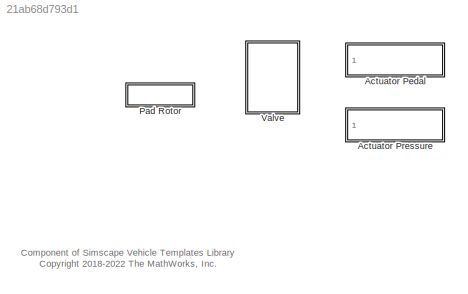
MODEL slx_21ab68d793d1
KIND library
CONFIG AbsTol = auto
CONFIG EnableMultiTasking = off
CONFIG FixedStep = auto
CONFIG MaxStep = auto
CONFIG MinStep = auto
CONFIG RelTol = 1e-3
CONFIG SampleTimeConstraint = Unconstrained
CONFIG SolverName = VariableStepAuto
CONFIG StartTime = 0.0
CONFIG StopTime = 10.0
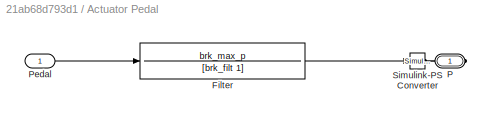
BLOCK [SubSystem] Actuator Pedal
  Ports = [1, 0, 0, 0, 0, 0, 1]
  RequestExecContextInheritance = off
BLOCK [TransferFcn] Actuator Pedal/Filter
  Denominator = [brk_filt 1]
  Numerator = brk_max_p
BLOCK [PMIOPort] Actuator Pedal/P
  Side = Right
BLOCK [Inport] Actuator Pedal/Pedal
BLOCK [Reference] Actuator Pedal/Simulink-PS Converter  REF=nesl_utility/Simulink-PS
Converter
  Ports = [1, 0, 0, 0, 0, 0, 1]
  SourceBlock = nesl_utility/Simulink-PS\nConverter
  SourceProductBaseCode = SS,PW,VE
  SourceType = Simulink-PS\nConverter
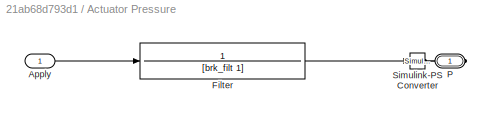
BLOCK [SubSystem] Actuator Pressure
  Ports = [1, 0, 0, 0, 0, 0, 1]
  RequestExecContextInheritance = off
BLOCK [Inport] Actuator Pressure/Apply
BLOCK [TransferFcn] Actuator Pressure/Filter
  Denominator = [brk_filt 1]
  Numerator = 1
BLOCK [PMIOPort] Actuator Pressure/P
  Side = Right
BLOCK [Reference] Actuator Pressure/Simulink-PS Converter  REF=nesl_utility/Simulink-PS
Converter
  Ports = [1, 0, 0, 0, 0, 0, 1]
  SourceBlock = nesl_utility/Simulink-PS\nConverter
  SourceProductBaseCode = SS,PW,VE
  SourceType = Simulink-PS\nConverter
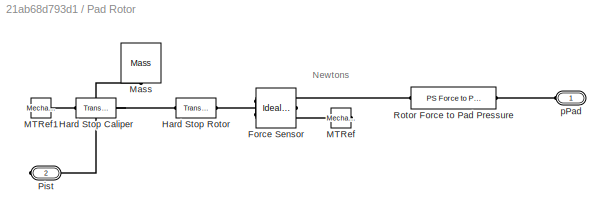
BLOCK [SubSystem] Pad Rotor
  Ports = [0, 0, 0, 0, 0, 1, 1]
  RequestExecContextInheritance = off
BLOCK [Reference] Pad Rotor/Force Sensor  REF=fl_lib/Mechanical/Mechanical Sensors/Ideal Force Sensor
  Ports = [0, 0, 0, 0, 0, 1, 2]
  SourceBlock = fl_lib/Mechanical/Mechanical Sensors/Ideal Force Sensor
  SourceProductBaseCode = PW,SS,VE
  SourceType = Ideal Force Sensor
BLOCK [Reference] Pad Rotor/Hard Stop Caliper  REF=fl_lib/Mechanical/Translational
Elements/Translational Hard
Stop
  Ports = [0, 0, 0, 0, 0, 1, 1]
  SourceBlock = fl_lib/Mechanical/Translational\nElements/Translational Hard\nStop
  SourceProductBaseCode = PW,SS,VE
  SourceType = Translational Hard\nStop
BLOCK [Reference] Pad Rotor/Hard Stop Rotor  REF=fl_lib/Mechanical/Translational
Elements/Translational Hard
Stop
  Ports = [0, 0, 0, 0, 0, 1, 1]
  SourceBlock = fl_lib/Mechanical/Translational\nElements/Translational Hard\nStop
  SourceProductBaseCode = PW,SS,VE
  SourceType = Translational Hard\nStop
BLOCK [Reference] Pad Rotor/MTRef  REF=fl_lib/Mechanical/Translational
Elements/Mechanical
Translational
Reference
  Ports = [0, 0, 0, 0, 0, 1]
  SourceBlock = fl_lib/Mechanical/Translational\nElements/Mechanical\nTranslational\nReference
  SourceProductBaseCode = PW,SS,VE
  SourceType = Mechanical\nTranslational\nReference
BLOCK [Reference] Pad Rotor/MTRef1  REF=fl_lib/Mechanical/Translational
Elements/Mechanical
Translational
Reference
  Ports = [0, 0, 0, 0, 0, 1]
  SourceBlock = fl_lib/Mechanical/Translational\nElements/Mechanical\nTranslational\nReference
  SourceProductBaseCode = PW,SS,VE
  SourceType = Mechanical\nTranslational\nReference
BLOCK [Reference] Pad Rotor/Mass  REF=fl_lib/Mechanical/Translational
Elements/Mass
  NameLocation = right
  Ports = [0, 0, 0, 0, 0, 1]
  SourceBlock = fl_lib/Mechanical/Translational\nElements/Mass
  SourceProductBaseCode = PW,SS,VE
  SourceType = Mass
BLOCK [PMIOPort] Pad Rotor/Pist
  Port = 2
  Side = Right
BLOCK [Reference] Pad Rotor/Rotor Force to Pad Pressure  REF=Custom_lib/PS Force to Pressure
  Ports = [0, 0, 0, 0, 0, 1, 1]
  SourceBlock = Custom_lib/PS Force to Pressure
  SourceType = PS Force to Pressure
BLOCK [PMIOPort] Pad Rotor/pPad
  Side = Left
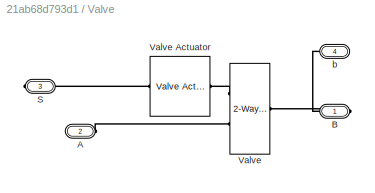
BLOCK [SubSystem] Valve
  Ports = [0, 0, 0, 0, 0, 2, 2]
  RequestExecContextInheritance = off
BLOCK [PMIOPort] Valve/A
  Port = 2
  Side = Left
BLOCK [PMIOPort] Valve/B
  Side = Right
BLOCK [PMIOPort] Valve/S
  Port = 3
  Side = Right
BLOCK [Reference] Valve/Valve  REF=sh_lib/Valves/Directional Valves/2-Way Directional
Valve
  Ports = [0, 0, 0, 0, 0, 2, 1]
  SourceBlock = sh_lib/Valves/Directional Valves/2-Way Directional\nValve
  SourceProductBaseCode = SH
  SourceType = 2-Way Directional\nValve
BLOCK [Reference] Valve/Valve Actuator  REF=sh_lib/Valves/Valve Actuators/Valve Actuator
  NameLocation = top
  Ports = [0, 0, 0, 0, 0, 1, 1]
  SourceBlock = sh_lib/Valves/Valve Actuators/Valve Actuator
  SourceProductBaseCode = SH
  SourceType = Valve Actuator
BLOCK [PMIOPort] Valve/b
  Port = 4
  Side = Left
ANNOTATION (root): Component of Simscape Vehicle Templates Library <copyright redacted>
ANNOTATION Pad Rotor: Newtons
LINE Actuator Pedal/Filter:1 -> Actuator Pedal/Simulink-PS Converter:1
LINE Actuator Pedal/Pedal:1 -> Actuator Pedal/Filter:1
LINE Actuator Pressure/Apply:1 -> Actuator Pressure/Filter:1
LINE Actuator Pressure/Filter:1 -> Actuator Pressure/Simulink-PS Converter:1
PLINE Actuator Pedal/P:RConn1 -- Actuator Pedal/Simulink-PS Converter:RConn1
PLINE Actuator Pressure/P:RConn1 -- Actuator Pressure/Simulink-PS Converter:RConn1
PLINE Pad Rotor/Force Sensor:LConn1 -- Pad Rotor/Hard Stop Rotor:RConn1
PLINE Pad Rotor/Force Sensor:RConn1 -- Pad Rotor/MTRef:LConn1
PLINE Pad Rotor/Force Sensor:RConn2 -- Pad Rotor/Rotor Force to Pad Pressure:LConn1
PNET net1: Pad Rotor/Hard Stop Caliper:LConn1 -- Pad Rotor/Hard Stop Rotor:LConn1 -- Pad Rotor/Mass:LConn1 -- Pad Rotor/Pist:RConn1
PLINE Pad Rotor/Hard Stop Caliper:RConn1 -- Pad Rotor/MTRef1:LConn1
PLINE Pad Rotor/Rotor Force to Pad Pressure:RConn1 -- Pad Rotor/pPad:RConn1
note: PNET lines group multi-terminal physical nets as a canonical sorted terminal list (undirected conserving connections); 2-terminal nets keep the pairwise PLINE form
